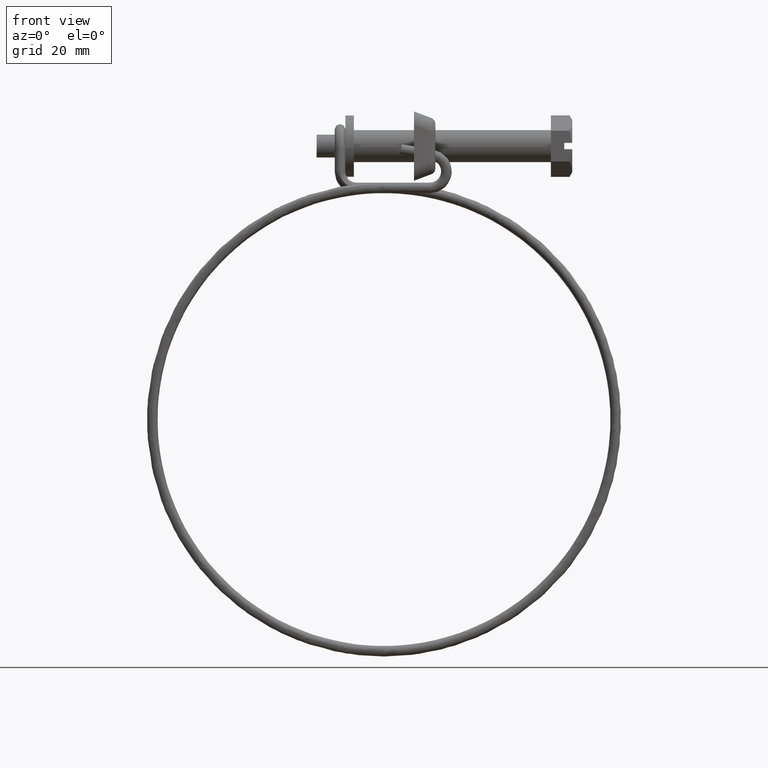
[diagram: clean part render]
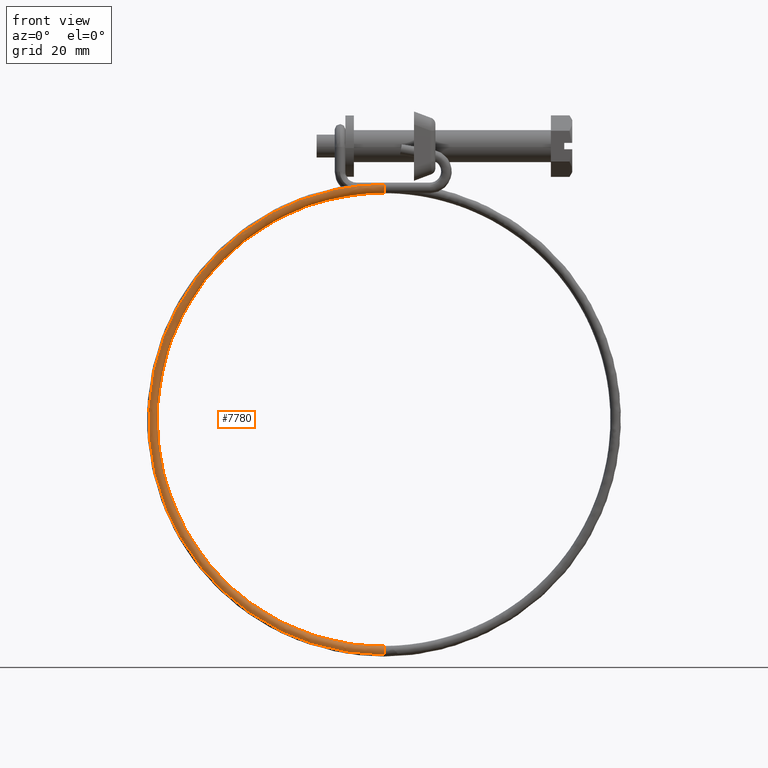
[diagram: same view with one face highlighted and labeled with its STEP entity id]
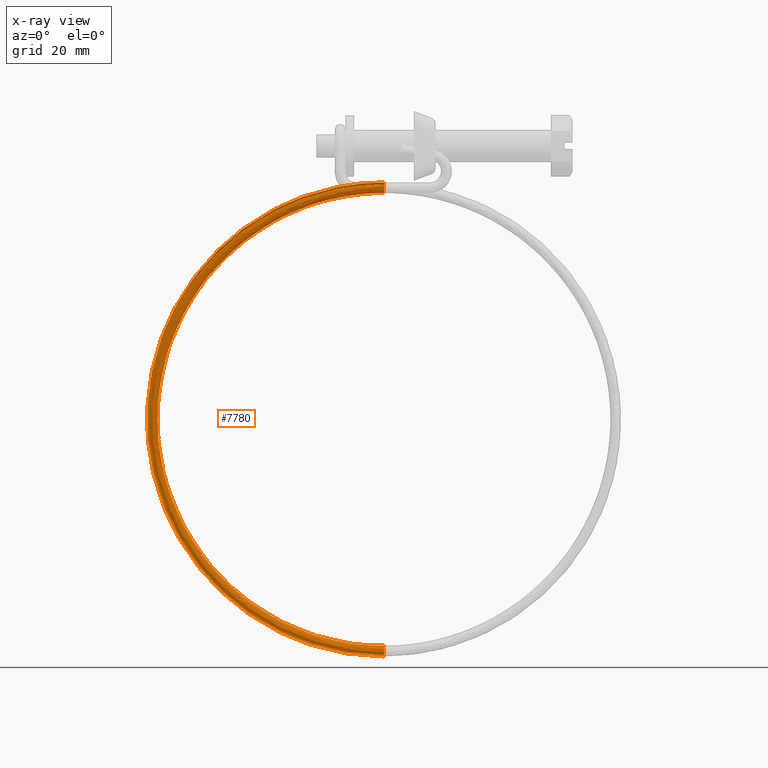
[diagram: x-ray of the same camera — body ghosted, the highlighted face saturated]
A machine part, front view. The second image highlights one B-rep face of the part: STEP entity #7780.
The next image is the same camera in x-ray: the body ghosted, the highlighted face saturated — about 0% of this face is hidden behind the body in this view.
In plain terms, the highlighted face is a freeform B-spline surface patch.
Its self-contained STEP definition (entity closure, byte-faithful):
#5897=CARTESIAN_POINT('',(-31.350000000000001,-6.002141588385088,-6.899077270550611));
#5898=VERTEX_POINT('',#5897);
#5904=CARTESIAN_POINT('',(-31.350000000000001,-6.356184222253045,-6.851067969104711));
#5905=VERTEX_POINT('',#5904);
#5906=CARTESIAN_POINT('',(-31.350000000000001,-6.002141588385088,-6.899077270550611));
#5907=CARTESIAN_POINT('',(-31.350000000000001,-6.116085887673006,-6.862246773684229));
#5908=CARTESIAN_POINT('',(-31.350000000000001,-6.236488194950073,-6.845384976278661));
#5909=CARTESIAN_POINT('',(-31.350000000000001,-6.356184222253045,-6.851067969104711));
#5910=B_SPLINE_CURVE_WITH_KNOTS('',3,(#5906,#5907,#5908,#5909),.UNSPECIFIED.,.F.,.U.,(4,4),(0.942811831421915,1.0),.UNSPECIFIED.);
#5911=EDGE_CURVE('',#5898,#5905,#5910,.T.);
#5913=CARTESIAN_POINT('',(-31.350000000000001,-7.069786413929966,-7.199859997275185));
#5914=VERTEX_POINT('',#5913);
#5924=CARTESIAN_POINT('',(-31.350000000000001,-6.263819731542295,-8.848934030895574));
#5925=VERTEX_POINT('',#5924);
#5926=CARTESIAN_POINT('',(-31.350000000000001,-7.069786413929966,-7.199859997275185));
#5927=CARTESIAN_POINT('',(-31.350000000000001,-7.232862689559377,-7.390962694234685));
#5928=CARTESIAN_POINT('',(-31.350000000000001,-7.320541853620466,-7.645124389463059));
#5929=CARTESIAN_POINT('',(-31.350000000000001,-7.296844524231879,-8.157703301296280));
#5930=CARTESIAN_POINT('',(-31.350000000000001,-7.177170386019830,-8.412635756900700));
#5931=CARTESIAN_POINT('',(-31.350000000000001,-6.790226650247880,-8.765382441016770));
#5932=CARTESIAN_POINT('',(-31.350000000000001,-6.525339787483070,-8.861024514456808));
#5933=CARTESIAN_POINT('',(-31.350000000000001,-6.263819731542295,-8.848934030895574));
#5934=B_SPLINE_CURVE_WITH_KNOTS('',3,(#5926,#5927,#5928,#5929,#5930,#5931,#5932,#5933),.UNSPECIFIED.,.F.,.U.,(4,2,2,4),(0.130000190143494,0.250000000000000,0.375000000000000,0.500000000000000),.UNSPECIFIED.);
#5935=EDGE_CURVE('',#5914,#5925,#5934,.T.);
#5937=CARTESIAN_POINT('',(-31.350000000000001,-5.310151727420603,-7.864888204606469));
#5938=VERTEX_POINT('',#5937);
#5939=CARTESIAN_POINT('',(-31.350000000000001,-6.263819731542295,-8.848934030895574));
#5940=CARTESIAN_POINT('',(-31.350000000000001,-6.002294260058105,-8.836843640709322));
#5941=CARTESIAN_POINT('',(-31.350000000000001,-5.747354324895505,-8.717169631460079));
#5942=CARTESIAN_POINT('',(-31.350000000000001,-5.408316117418934,-8.345279258486906));
#5943=CARTESIAN_POINT('',(-31.350000000000001,-5.314316165359879,-8.106126222328308));
#5944=CARTESIAN_POINT('',(-31.350000000000001,-5.310151727420603,-7.864888204606469));
#5945=B_SPLINE_CURVE_WITH_KNOTS('',3,(#5939,#5940,#5941,#5942,#5943,#5944),.UNSPECIFIED.,.F.,.U.,(4,2,4),(0.500000000000000,0.625000000000000,0.740274350575671),.UNSPECIFIED.);
#5946=EDGE_CURVE('',#5925,#5938,#5945,.T.);
#6017=CARTESIAN_POINT('',(-31.350000000000001,-5.310151727420603,-7.864888204606469));
#6018=CARTESIAN_POINT('',(-31.350000000000001,-5.309799280678833,-7.844528715944496));
#6019=CARTESIAN_POINT('',(-31.350000000000001,-5.310086255496589,-7.824154237097939));
#6020=CARTESIAN_POINT('',(-31.350000000000001,-5.323095466557249,-7.542194869799532));
#6021=CARTESIAN_POINT('',(-31.350000000000001,-5.442743892900785,-7.287155129220346));
#6022=CARTESIAN_POINT('',(-31.350000000000001,-5.741136539541346,-7.014947163850199));
#6023=CARTESIAN_POINT('',(-31.350000000000001,-5.867099215287734,-6.942973733961765));
#6024=CARTESIAN_POINT('',(-31.350000000000001,-6.002141588385088,-6.899077270550611));
#6025=B_SPLINE_CURVE_WITH_KNOTS('',3,(#6017,#6018,#6019,#6020,#6021,#6022,#6023,#6024),.UNSPECIFIED.,.F.,.U.,(4,2,2,4),(0.740274350575671,0.750000000000000,0.875000000000000,0.942811831421915),.UNSPECIFIED.);
#6026=EDGE_CURVE('',#5938,#5898,#6025,.T.);
#6618=CARTESIAN_POINT('',(-31.349999992753141,-3.300324995550327,-94.875130613753925));
#6619=VERTEX_POINT('',#6618);
#6635=CARTESIAN_POINT('',(-31.349999999999859,-4.300002000000002,-93.850001000000105));
#6636=VERTEX_POINT('',#6635);
#6637=CARTESIAN_POINT('',(-31.349999999999859,-4.300002000000002,-93.850001000000105));
#6638=CARTESIAN_POINT('',(-31.349999999074811,-4.038201694071662,-93.850001024100251));
#6639=CARTESIAN_POINT('',(-31.349999997764961,-3.778013123046412,-93.957774154616004));
#6640=CARTESIAN_POINT('',(-31.349999995115208,-3.407770248269916,-94.328014468496121));
#6641=CARTESIAN_POINT('',(-31.349999993791641,-3.299995838205550,-94.588201773943169));
#6642=CARTESIAN_POINT('',(-31.349999992812670,-3.299994866560188,-94.858380116284053));
#6643=CARTESIAN_POINT('',(-31.349999992782699,-3.300105232005116,-94.866757394762359));
#6644=CARTESIAN_POINT('',(-31.349999992753141,-3.300324995550327,-94.875130613753925));
#6645=B_SPLINE_CURVE_WITH_KNOTS('',3,(#6637,#6638,#6639,#6640,#6641,#6642,#6643,#6644),.UNSPECIFIED.,.F.,.U.,(4,2,2,4),(0.500000000000000,0.625000000000000,0.750000000000000,0.754000643922078),.UNSPECIFIED.);
#6646=EDGE_CURVE('',#6636,#6619,#6645,.T.);
#6648=CARTESIAN_POINT('',(-31.349999999999930,-5.028950799208166,-95.534536873649984));
#6649=VERTEX_POINT('',#6648);
#6650=CARTESIAN_POINT('',(-31.349999999999930,-5.028950799208166,-95.534536873649984));
#6651=CARTESIAN_POINT('',(-31.349999999999859,-5.200678629129007,-95.351169305936708));
#6652=CARTESIAN_POINT('',(-31.349999999999870,-5.300001999999999,-95.101328014051802));
#6653=CARTESIAN_POINT('',(-31.349999999999859,-5.300002000000001,-94.588201612200947));
#6654=CARTESIAN_POINT('',(-31.349999999999870,-5.192228903609815,-94.328014341236823));
#6655=CARTESIAN_POINT('',(-31.349999999999859,-4.821988658763284,-93.957774096390295));
#6656=CARTESIAN_POINT('',(-31.349999999999870,-4.561801387799152,-93.850001000000120));
#6657=CARTESIAN_POINT('',(-31.349999999999859,-4.300002000000002,-93.850001000000105));
#6658=B_SPLINE_CURVE_WITH_KNOTS('',3,(#6650,#6651,#6652,#6653,#6654,#6655,#6656,#6657),.UNSPECIFIED.,.F.,.U.,(4,2,2,4),(0.130000190143440,0.250000000000000,0.375000000000000,0.500000000000000),.UNSPECIFIED.);
#6659=EDGE_CURVE('',#6649,#6636,#6658,.T.);
#6661=CARTESIAN_POINT('',(-31.350001623168520,-4.312567047721672,-95.849843094641670));
#6662=VERTEX_POINT('',#6661);
#6727=CARTESIAN_POINT('',(-31.349999992753141,-3.300324995550327,-94.875130613753925));
#6728=CARTESIAN_POINT('',(-31.350000204762821,-3.308607445494275,-95.128357791433388));
#6729=CARTESIAN_POINT('',(-31.350000497401560,-3.417584078672411,-95.377863711579479));
#6730=CARTESIAN_POINT('',(-31.350001098951001,-3.786538113243200,-95.742120829301214));
#6731=CARTESIAN_POINT('',(-31.350001404315311,-4.049080068426769,-95.849864315867862));
#6732=CARTESIAN_POINT('',(-31.350001623168520,-4.312567047721672,-95.849843094641670));
#6733=B_SPLINE_CURVE_WITH_KNOTS('',3,(#6727,#6728,#6729,#6730,#6731,#6732),.UNSPECIFIED.,.F.,.U.,(4,2,4),(0.754000643922080,0.875000000000000,1.0),.UNSPECIFIED.);
#6734=EDGE_CURVE('',#6619,#6662,#6733,.T.);
#7521=CARTESIAN_POINT('',(-30.655752328614440,-5.010231871613422,-95.554524422969536));
#7522=CARTESIAN_POINT('',(-30.658724441951520,-5.193250541143429,-95.369581480504877));
#7523=CARTESIAN_POINT('',(-30.666982278907120,-5.407578728954728,-94.848932184648177));
#7524=CARTESIAN_POINT('',(-30.679162848519059,-5.083829654859460,-94.066174412468882));
#7525=CARTESIAN_POINT('',(-30.683971766650110,-4.300038217611426,-93.741984492660421));
#7526=CARTESIAN_POINT('',(-30.678595252776550,-3.516059698399412,-94.066080284464832));
#7527=CARTESIAN_POINT('',(-30.666161095195900,-3.191958321162210,-94.850011037229095));
#7528=CARTESIAN_POINT('',(-30.653757512499720,-3.521918307917675,-95.647106807034362));
#7529=CARTESIAN_POINT('',(-30.650596186263900,-4.065177320805353,-95.860872431738500));
#7530=CARTESIAN_POINT('',(-30.650866731965220,-4.339961632578056,-95.850000999914073));
#7531=CARTESIAN_POINT('',(-30.887168219076290,-5.010231902460892,-95.554524423464017));
#7532=CARTESIAN_POINT('',(-30.889149627967679,-5.193250571857865,-95.369581481126616));
#7533=CARTESIAN_POINT('',(-30.894654852604749,-5.407578759301813,-94.848932185417823));
#7534=CARTESIAN_POINT('',(-30.902775232346048,-5.083829684670192,-94.066174413014906));
#7535=CARTESIAN_POINT('',(-30.905981177766730,-4.300038247215538,-93.741984492661274));
#7536=CARTESIAN_POINT('',(-30.902396835184380,-3.516059728247863,-94.066080283920044));
#7537=CARTESIAN_POINT('',(-30.894107396797260,-3.191958351563559,-94.850011036460302));
#7538=CARTESIAN_POINT('',(-30.885838341666489,-3.521918338865315,-95.647106806493923));
#7539=CARTESIAN_POINT('',(-30.883730790842598,-4.065177351888652,-95.860872431575601));
#7540=CARTESIAN_POINT('',(-30.883911154643481,-4.339961663647114,-95.850000999942722));
#7541=CARTESIAN_POINT('',(-31.118584109538151,-5.010231933308363,-95.554524423958512));
#7542=CARTESIAN_POINT('',(-31.119574813983849,-5.193250602572298,-95.369581481748384));
#7543=CARTESIAN_POINT('',(-31.122327426302370,-5.407578789648902,-94.848932186187497));
#7544=CARTESIAN_POINT('',(-31.126387616173030,-5.083829714480923,-94.066174413560987));
#7545=CARTESIAN_POINT('',(-31.127990588883371,-4.300038276819652,-93.741984492662169));
#7546=CARTESIAN_POINT('',(-31.126198417592182,-3.516059758096313,-94.066080283375229));
#7547=CARTESIAN_POINT('',(-31.122053698398641,-3.191958381964906,-94.850011035691438));
#7548=CARTESIAN_POINT('',(-31.117919170833261,-3.521918369812958,-95.647106805953470));
#7549=CARTESIAN_POINT('',(-31.116865395421300,-4.065177382971950,-95.860872431412702));
#7550=CARTESIAN_POINT('',(-31.116955577321740,-4.339961694716172,-95.850000999971357));
#7551=CARTESIAN_POINT('',(-37.135397329267541,-5.010232735342612,-95.554524436815171));
#7552=CARTESIAN_POINT('',(-37.110629717835337,-5.193251401147635,-95.369581497914126));
#7553=CARTESIAN_POINT('',(-37.041814409066284,-5.407579578673174,-94.848932206198981));
#7554=CARTESIAN_POINT('',(-36.940309661112067,-5.083830489559951,-94.066174427758227));
#7555=CARTESIAN_POINT('',(-36.900235342884272,-4.300039046526604,-93.741984492684651));
#7556=CARTESIAN_POINT('',(-36.945039625688217,-3.516060534156039,-94.066080269210204));
#7557=CARTESIAN_POINT('',(-37.048657606740043,-3.191959172399967,-94.850011015701497));
#7558=CARTESIAN_POINT('',(-37.152020797084766,-3.521919174451662,-95.647106791901649));
#7559=CARTESIAN_POINT('',(-37.178365182691607,-4.065178191137714,-95.860872427177313));
#7560=CARTESIAN_POINT('',(-37.176110635154259,-4.339962502511699,-95.850001000716134));
#7561=CARTESIAN_POINT('',(-42.916529355025339,-5.036805353614049,-94.404332927301141));
#7562=CARTESIAN_POINT('',(-42.867012667957070,-5.219710255054273,-94.224314258448061));
#7563=CARTESIAN_POINT('',(-42.729433551013592,-5.433722345122944,-93.717346757940646));
#7564=CARTESIAN_POINT('',(-42.526500020173771,-5.109507016920393,-92.954770063781581));
#7565=CARTESIAN_POINT('',(-42.446381374980909,-4.325531501440456,-92.638547680544178));
#7566=CARTESIAN_POINT('',(-42.535956409360082,-3.541758787220010,-92.953735525380011));
#7567=CARTESIAN_POINT('',(-42.743114825191853,-3.218133371082244,-93.717065047810195));
#7568=CARTESIAN_POINT('',(-42.949763849834007,-3.548568148551993,-94.493610246016075));
#7569=CARTESIAN_POINT('',(-43.002432905327993,-4.091948172298284,-94.702138105854019));
#7570=CARTESIAN_POINT('',(-42.997925497496610,-4.366722127977751,-94.691714921618953));
#7571=CARTESIAN_POINT('',(-53.604121068499097,-5.139081793309522,-89.977442202969314));
#7572=CARTESIAN_POINT('',(-53.508855581237093,-5.321548895716088,-89.816373044740303));
#7573=CARTESIAN_POINT('',(-53.244166192900842,-5.534344587678921,-89.362055612355306));
#7574=CARTESIAN_POINT('',(-52.853741008147772,-5.208335033953167,-88.677139426541984));
#7575=CARTESIAN_POINT('',(-52.699600207744382,-4.423651153938940,-88.391577598658756));
#7576=CARTESIAN_POINT('',(-52.871934219067263,-3.640670412392919,-88.672486028373143));
#7577=CARTESIAN_POINT('',(-53.270487688168807,-3.318876575853823,-89.356538223701619));
#7578=CARTESIAN_POINT('',(-53.668061136629923,-3.651138429184916,-90.054001033226129));
#7579=CARTESIAN_POINT('',(-53.769391486519737,-4.194984123460162,-90.242373004511748));
#7580=CARTESIAN_POINT('',(-53.760719654311004,-4.469718227140759,-90.233674757434883));
#7581=CARTESIAN_POINT('',(-63.409314473870538,-5.290466777616795,-83.424957732288874));
#7582=CARTESIAN_POINT('',(-63.272083128729250,-5.472285916382112,-83.291934761904301));
#7583=CARTESIAN_POINT('',(-62.890794145183079,-5.683281280596242,-82.915541964180221));
#7584=CARTESIAN_POINT('',(-62.328380884896639,-5.354616186733251,-82.345567069249540));
#7585=CARTESIAN_POINT('',(-62.106338779416113,-4.568883893093669,-82.105384338832906));
#7586=CARTESIAN_POINT('',(-62.354588474541004,-3.787075309243397,-82.335557584357417));
#7587=CARTESIAN_POINT('',(-62.928710648994397,-3.467992298689765,-82.902275519568590));
#7588=CARTESIAN_POINT('',(-63.501421088830320,-3.802958312222250,-83.482692587474972));
#7589=CARTESIAN_POINT('',(-63.647388958564846,-4.347493221281354,-83.641232873507477));
#7590=CARTESIAN_POINT('',(-63.634897055835182,-4.622168342093421,-83.635087616420734));
#7591=CARTESIAN_POINT('',(-69.961380782826112,-5.517000060777050,-73.619785661943340));
#7592=CARTESIAN_POINT('',(-69.796116556414432,-5.697849919275313,-73.528716613897757));
#7593=CARTESIAN_POINT('',(-69.336939909524858,-5.906152196958943,-73.268890249406368));
#7594=CARTESIAN_POINT('',(-68.659639892490134,-5.573514715649990,-72.870854514799120));
#7595=CARTESIAN_POINT('',(-68.392240219616667,-4.786214113903646,-72.698553777796022));
#7596=CARTESIAN_POINT('',(-68.691201027712552,-4.006158945281676,-72.852832930443498));
#7597=CARTESIAN_POINT('',(-69.382601792726021,-3.691131023538754,-73.244032094022899));
#7598=CARTESIAN_POINT('',(-70.072302441864323,-4.030142154656016,-73.649361980997256));
#7599=CARTESIAN_POINT('',(-70.248087843047529,-4.575708051026131,-73.763277442815934));
#7600=CARTESIAN_POINT('',(-70.233044161585681,-4.850294940138388,-73.760951169724663));
#7601=CARTESIAN_POINT('',(-74.387899011259989,-5.763912282140269,-62.932540136736151));
#7602=CARTESIAN_POINT('',(-74.203697383130603,-5.943705809550313,-62.887192882795979));
#7603=CARTESIAN_POINT('',(-73.691904312214263,-6.149073135256331,-62.754401754756742));
#7604=CARTESIAN_POINT('',(-72.936993412523293,-5.812106507319622,-62.543746995275932));
#7605=CARTESIAN_POINT('',(-72.638952776822322,-5.023096748102888,-62.445424717106022));
#7606=CARTESIAN_POINT('',(-72.972171095014289,-4.244952468502059,-62.516993746802747));
#7607=CARTESIAN_POINT('',(-73.742798528291758,-3.934343822134394,-62.716910839923962));
#7608=CARTESIAN_POINT('',(-74.511531031488502,-4.277763361864058,-62.931429008565530));
#7609=CARTESIAN_POINT('',(-74.707459441495743,-4.824452838266030,-62.996711901084559));
#7610=CARTESIAN_POINT('',(-74.690691925172132,-5.098943571611292,-62.998547594147773));
#7611=CARTESIAN_POINT('',(-75.537931089602807,-5.897490524303376,-57.150795260224108));
#7612=CARTESIAN_POINT('',(-75.348810251928796,-6.076712644351237,-57.130180563908311));
#7613=CARTESIAN_POINT('',(-74.823349455111838,-6.280492349300279,-57.066107349752812));
#7614=CARTESIAN_POINT('',(-74.048278229221680,-5.941183930761143,-56.956813677782229));
#7615=CARTESIAN_POINT('',(-73.742278248317675,-5.151249626977427,-56.898509000242690));
#7616=CARTESIAN_POINT('',(-74.084395351803792,-4.374139015768519,-56.925337159064718));
#7617=CARTESIAN_POINT('',(-74.875602830211918,-4.065920913887214,-57.021782922399218));
#7618=CARTESIAN_POINT('',(-75.664864773464771,-4.411725119884829,-57.133084191493218));
#7619=CARTESIAN_POINT('',(-75.866025563365866,-4.959022381016355,-57.172059983861139));
#7620=CARTESIAN_POINT('',(-75.848810260943068,-5.233461100257324,-57.176147033562927));
#7621=CARTESIAN_POINT('',(-75.537931089681848,-6.164752061124866,-45.582758458966843));
#7622=CARTESIAN_POINT('',(-75.348810252007851,-6.342830923745283,-45.611628039959768));
#7623=CARTESIAN_POINT('',(-74.823349455190922,-6.543434157156435,-45.685043894307967));
#7624=CARTESIAN_POINT('',(-74.048278229300720,-6.199440343028692,-45.778550928670697));
#7625=CARTESIAN_POINT('',(-73.742278248396758,-5.407656233831397,-45.800312457089163));
#7626=CARTESIAN_POINT('',(-74.084395351882762,-4.632613760240314,-45.737624210168292));
#7627=CARTESIAN_POINT('',(-74.875602830291001,-4.329178599453854,-45.627047147479502));
#7628=CARTESIAN_POINT('',(-75.664864773543755,-4.679753985576072,-45.531834648087496));
#7629=CARTESIAN_POINT('',(-75.866025563444978,-5.228267287031827,-45.518175858081392));
#7630=CARTESIAN_POINT('',(-75.848810261022180,-5.502601937774448,-45.526767365402478));
#7631=CARTESIAN_POINT('',(-74.387899011339329,-6.298330303284316,-39.801013582514727));
#7632=CARTESIAN_POINT('',(-74.203697383196371,-6.475837758546970,-39.854615721156073));
#7633=CARTESIAN_POINT('',(-73.691904312279647,-6.674853371206589,-39.996749489359573));
#7634=CARTESIAN_POINT('',(-72.936993412556177,-6.328517766468029,-40.191617611209288));
#7635=CARTESIAN_POINT('',(-72.638952776863746,-5.535809112703275,-40.253396740297390));
#7636=CARTESIAN_POINT('',(-72.972171095057291,-4.761800307503293,-40.145967622474132));
#7637=CARTESIAN_POINT('',(-73.742798528348544,-4.460755691206106,-39.931919230037863));
#7638=CARTESIAN_POINT('',(-74.511531031577405,-4.813715743597371,-39.733489831106738));
#7639=CARTESIAN_POINT('',(-74.707459441537864,-5.362836829780640,-39.693523940899503));
#7640=CARTESIAN_POINT('',(-74.690691925189071,-5.637119466417993,-39.704366804880102));
#7641=CARTESIAN_POINT('',(-69.961380782754929,-6.545242524652752,-29.113768057150700));
#7642=CARTESIAN_POINT('',(-69.796116556354747,-6.721693648819478,-29.213091989845740));
#7643=CARTESIAN_POINT('',(-69.336939909454287,-6.917774309490803,-29.482260994591801));
#7644=CARTESIAN_POINT('',(-68.659639892469286,-6.567109558138919,-29.864510091596159));
#7645=CARTESIAN_POINT('',(-68.392240219553685,-5.772691746908539,-30.000267679448118));
#7646=CARTESIAN_POINT('',(-68.691201027672037,-5.000593830727825,-29.810128438716760));
#7647=CARTESIAN_POINT('',(-69.382601792674549,-4.703968489802996,-29.404797975769391));
#7648=CARTESIAN_POINT('',(-70.072302441778689,-5.061336950801575,-29.015556858440341));
#7649=CARTESIAN_POINT('',(-70.248087842998160,-5.611581617023843,-28.926958399070301));
#7650=CARTESIAN_POINT('',(-70.233044161561281,-5.885768097896193,-28.941963229159519));
#7651=CARTESIAN_POINT('',(-63.409314473891172,-6.771775807810846,-19.308595986912731));
#7652=CARTESIAN_POINT('',(-63.272083128732604,-6.947257651715723,-19.449873841992989));
#7653=CARTESIAN_POINT('',(-62.890794145208602,-7.140645225861122,-19.835609279856019));
#7654=CARTESIAN_POINT('',(-62.328380884881952,-6.786008087057910,-20.389797537214140));
#7655=CARTESIAN_POINT('',(-62.106338779383478,-5.990021967708315,-20.593437118494300));
#7656=CARTESIAN_POINT('',(-62.354588474572921,-5.219677466764016,-20.327403784875351));
#7657=CARTESIAN_POINT('',(-62.928710648983127,-4.927107214647718,-19.746554550321228));
#7658=CARTESIAN_POINT('',(-63.501421088853107,-5.288520793242004,-19.182226252124380));
#7659=CARTESIAN_POINT('',(-63.647388958560960,-5.839796446762927,-19.049002968431729));
#7660=CARTESIAN_POINT('',(-63.634897055813120,-6.113894695934096,-19.067826782545222));
#7661=CARTESIAN_POINT('',(-53.604121068531050,-6.923160792118313,-12.756111516298830));
#7662=CARTESIAN_POINT('',(-53.508855581292082,-7.097994672379422,-12.925435559195520));
#7663=CARTESIAN_POINT('',(-53.244166192922293,-7.289581918783443,-13.389095631818410));
#7664=CARTESIAN_POINT('',(-52.853741008199982,-6.932289239834915,-14.058225179948870));
#7665=CARTESIAN_POINT('',(-52.699600207874660,-6.135254706880128,-14.307243858771219));
#7666=CARTESIAN_POINT('',(-52.871934219045990,-5.366082363618079,-13.990475340934680));
#7667=CARTESIAN_POINT('',(-53.270487688244842,-5.076222937493731,-13.292291846242589));
#7668=CARTESIAN_POINT('',(-53.668061136671817,-5.440340676272534,-12.610917806461741));
#7669=CARTESIAN_POINT('',(-53.769391486579032,-5.992305544593982,-12.447862837495119));
#7670=CARTESIAN_POINT('',(-53.760719654381617,-6.266344810896636,-12.469239641612010));
#7671=CARTESIAN_POINT('',(-42.916529354986423,-7.025437231816677,-8.329220791850482));
#7672=CARTESIAN_POINT('',(-42.867012667897150,-7.199833313044157,-8.517494345393729));
#7673=CARTESIAN_POINT('',(-42.729433550998493,-7.390204161328877,-9.033804486014887));
#7674=CARTESIAN_POINT('',(-42.526500020110582,-7.031117256874291,-9.780594542659838));
#7675=CARTESIAN_POINT('',(-42.446381374873589,-6.233374359357391,-10.060273776706230));
#7676=CARTESIAN_POINT('',(-42.535956409380169,-5.464993988789450,-9.709225843807799));
#7677=CARTESIAN_POINT('',(-42.743114825111782,-5.176966142252248,-8.931765022007014));
#7678=CARTESIAN_POINT('',(-42.949763849789889,-5.542910956915105,-8.171308593509444));
#7679=CARTESIAN_POINT('',(-43.002432905277267,-6.095341495743625,-7.988097736039657));
#7680=CARTESIAN_POINT('',(-42.997925497434792,-6.369340910048025,-8.011199477284265));
#7681=CARTESIAN_POINT('',(-37.135397295382617,-7.052214890219972,-7.179062805148662));
#7682=CARTESIAN_POINT('',(-37.110629684153743,-7.226496773006367,-7.372260417336777));
#7683=CARTESIAN_POINT('',(-37.041814375876022,-7.416550320900358,-7.902251757904546));
#7684=CARTESIAN_POINT('',(-36.940309628737317,-7.056995350604807,-8.669222021325201));
#7685=CARTESIAN_POINT('',(-36.900235310859692,-6.259067650118737,-8.956868451000876));
#7686=CARTESIAN_POINT('',(-36.945039593240303,-5.490893894982788,-8.596912955804111));
#7687=CARTESIAN_POINT('',(-37.048657573581821,-5.203343855690317,-7.798851794793129));
#7688=CARTESIAN_POINT('',(-37.152020763100353,-5.569765265644509,-7.017845688133045));
#7689=CARTESIAN_POINT('',(-37.178365148499843,-6.122317267534442,-6.829397293804844));
#7690=CARTESIAN_POINT('',(-37.176110600983861,-6.396306287242039,-6.852947262425684));
#7691=CARTESIAN_POINT('',(-31.118584113344589,-7.052002450513539,-7.179027954321494));
#7692=CARTESIAN_POINT('',(-31.119574817771660,-7.226284781280942,-7.372225789664317));
#7693=CARTESIAN_POINT('',(-31.122327430041391,-7.416339581082159,-7.902217749071488));
#7694=CARTESIAN_POINT('',(-31.126387619836400,-7.056786496652949,-8.669188919186697));
#7695=CARTESIAN_POINT('',(-31.127990592515768,-6.258859550554735,-8.956835705215385));
#7696=CARTESIAN_POINT('',(-31.126198421260490,-5.490684951786352,-8.596879811626396));
#7697=CARTESIAN_POINT('',(-31.122053702139262,-5.203132990785216,-7.798817724562613));
#7698=CARTESIAN_POINT('',(-31.117919174650719,-5.569552522261563,-7.017810688008932));
#7699=CARTESIAN_POINT('',(-31.116865399258231,-6.122104053450301,-6.829362055368138));
#7700=CARTESIAN_POINT('',(-31.116955581156851,-6.396093113245746,-6.852912044426871));
#7701=CARTESIAN_POINT('',(-30.887168226689170,-7.051994279755775,-7.179026613905094));
#7702=CARTESIAN_POINT('',(-30.889149635543308,-7.226276627753217,-7.372224457830790));
#7703=CARTESIAN_POINT('',(-30.894654860082760,-7.416331475704710,-7.902216441039476));
#7704=CARTESIAN_POINT('',(-30.902775239672810,-7.056778463808818,-8.669187646027549));
#7705=CARTESIAN_POINT('',(-30.905981185031528,-6.258851546725524,-8.956834445762121));
#7706=CARTESIAN_POINT('',(-30.902396842521000,-5.490676915509740,-8.596878536850360));
#7707=CARTESIAN_POINT('',(-30.894107404278511,-5.203124880596733,-7.798816414169157));
#7708=CARTESIAN_POINT('',(-30.885838349301419,-5.569544339823935,-7.017809341850342));
#7709=CARTESIAN_POINT('',(-30.883730798516439,-6.122095852908776,-6.829360700043679));
#7710=CARTESIAN_POINT('',(-30.883911162313701,-6.396084914246064,-6.852910689888485));
#7711=CARTESIAN_POINT('',(-30.655752340033761,-7.051986108998010,-7.179025273488693));
#7712=CARTESIAN_POINT('',(-30.658724453314960,-7.226268474225491,-7.372223125997262));
#7713=CARTESIAN_POINT('',(-30.666982290124150,-7.416323370327259,-7.902215133007464));
#7714=CARTESIAN_POINT('',(-30.679162859509209,-7.056770430964690,-8.669186372868403));
#7715=CARTESIAN_POINT('',(-30.683971777547299,-6.258843542896308,-8.956833186308861));
#7716=CARTESIAN_POINT('',(-30.678595263781510,-5.490668879233124,-8.596877262074319));
#7717=CARTESIAN_POINT('',(-30.666161106417778,-5.203116770408248,-7.798815103775706));
#7718=CARTESIAN_POINT('',(-30.653757523952120,-5.569536157386304,-7.017807995691750));
#7719=CARTESIAN_POINT('',(-30.650596197774661,-6.122087652367256,-6.829359344719218));
#7720=CARTESIAN_POINT('',(-30.650866743470541,-6.396076715246383,-6.852909335350097));
#7721=B_SPLINE_SURFACE_WITH_KNOTS('',3,3,((#7521,#7531,#7541,#7551,#7561,#7571,#7581,#7591,#7601,#7611,#7621,#7631,#7641,#7651,#7661,#7671,#7681,#7691,#7701,#7711),(#7522,#7532,#7542,#7552,#7562,#7572,#7582,#7592,#7602,#7612,#7622,#7632,#7642,#7652,#7662,#7672,#7682,#7692,#7702,#7712),(#7523,#7533,#7543,#7553,#7563,#7573,#7583,#7593,#7603,#7613,#7623,#7633,#7643,#7653,#7663,#7673,#7683,#7693,#7703,#7713),(#7524,#7534,#7544,#7554,#7564,#7574,#7584,#7594,#7604,#7614,#7624,#7634,#7644,#7654,#7664,#7674,#7684,#7694,#7704,#7714),(#7525,#7535,#7545,#7555,#7565,#7575,#7585,#7595,#7605,#7615,#7625,#7635,#7645,#7655,#7665,#7675,#7685,#7695,#7705,#7715),(#7526,#7536,#7546,#7556,#7566,#7576,#7586,#7596,#7606,#7616,#7626,#7636,#7646,#7656,#7666,#7676,#7686,#7696,#7706,#7716),(#7527,#7537,#7547,#7557,#7567,#7577,#7587,#7597,#7607,#7617,#7627,#7637,#7647,#7657,#7667,#7677,#7687,#7697,#7707,#7717),(#7528,#7538,#7548,#7558,#7568,#7578,#7588,#7598,#7608,#7618,#7628,#7638,#7648,#7658,#7668,#7678,#7688,#7698,#7708,#7718),(#7529,#7539,#7549,#7559,#7569,#7579,#7589,#7599,#7609,#7619,#7629,#7639,#7649,#7659,#7669,#7679,#7689,#7699,#7709,#7719),(#7530,#7540,#7550,#7560,#7570,#7580,#7590,#7600,#7610,#7620,#7630,#7640,#7650,#7660,#7670,#7680,#7690,#7700,#7710,#7720)),.UNSPECIFIED.,.F.,.F.,.U.,(4,1,1,1,1,1,1,4),(4,2,2,1,2,2,2,1,2,2,4),(0.0,0.781845877629182,1.567715950987399,2.353586024345617,3.139456097703834,3.925326171062051,4.711196244420269,5.537050053541711),(0.0,0.699137487626812,18.177574882891530,35.656012278156233,53.134449673420583,70.612887068685296,88.091324463949718,105.569761859214400,123.048199254479100,140.526636649743490,141.225774129965400),.UNSPECIFIED.);
#7722=ORIENTED_EDGE('',*,*,#5935,.F.);
#7723=CARTESIAN_POINT('',(-31.349999999999930,-5.028950799208166,-95.534536873649984));
#7724=CARTESIAN_POINT('',(-37.132723915997168,-5.028951570036184,-95.534536886337563));
#7725=CARTESIAN_POINT('',(-42.911184529233928,-5.055511908059022,-94.384876925179213));
#7726=CARTESIAN_POINT('',(-53.594159397062903,-5.157748521686163,-89.959710015765282));
#7727=CARTESIAN_POINT('',(-58.493527380152983,-5.233383745838197,-86.685946544708614));
#7728=CARTESIAN_POINT('',(-66.669664508574158,-5.422285321086834,-78.509609611633593));
#7729=CARTESIAN_POINT('',(-69.943220905444264,-5.535477352467795,-73.610252973174298));
#7730=CARTESIAN_POINT('',(-74.368016307650819,-5.782282980567047,-62.927621186333532));
#7731=CARTESIAN_POINT('',(-75.517517407053845,-5.915799542391381,-57.148546055845472));
#7732=CARTESIAN_POINT('',(-75.517517407132928,-6.182937670747856,-45.585850815079780));
#7733=CARTESIAN_POINT('',(-74.368016307729846,-6.316454232568932,-39.806775684653552));
#7734=CARTESIAN_POINT('',(-69.943220905365592,-6.563259860674688,-29.124143897689681));
#7735=CARTESIAN_POINT('',(-66.669664508563642,-6.676451892048831,-24.224787259173439));
#7736=CARTESIAN_POINT('',(-58.493527380164522,-6.865353467304588,-16.048450326335580));
#7737=CARTESIAN_POINT('',(-53.594159397103077,-6.940988691450623,-12.774686855199640));
#7738=CARTESIAN_POINT('',(-42.911184529194763,-7.043225305082662,-8.349519945706700));
#7739=CARTESIAN_POINT('',(-37.132723882132822,-7.069990636375258,-7.199893484525287));
#7740=CARTESIAN_POINT('',(-31.350000000000001,-7.069786413929966,-7.199859997275185));
#7741=B_SPLINE_CURVE_WITH_KNOTS('',3,(#7723,#7724,#7725,#7726,#7727,#7728,#7729,#7730,#7731,#7732,#7733,#7734,#7735,#7736,#7737,#7738,#7739,#7740),.UNSPECIFIED.,.F.,.U.,(4,2,2,2,2,2,2,2,4),(0.459674014216280,0.517138037525583,0.574602060834886,0.632066084144188,0.689530107453491,0.746994130762793,0.804458154072096,0.861922177381399,0.919386200690701),.UNSPECIFIED.);
#7742=EDGE_CURVE('',#6649,#5914,#7741,.T.);
#7743=ORIENTED_EDGE('',*,*,#7742,.F.);
#7744=ORIENTED_EDGE('',*,*,#6659,.T.);
#7745=ORIENTED_EDGE('',*,*,#6646,.T.);
#7746=ORIENTED_EDGE('',*,*,#6734,.T.);
#7747=CARTESIAN_POINT('',(-31.350001623168520,-4.312567047721672,-95.849843094641670));
#7748=CARTESIAN_POINT('',(-37.175495996935247,-4.312565460007609,-95.849842904880489));
#7749=CARTESIAN_POINT('',(-42.998513374467180,-4.339171547752963,-94.692322649262479));
#7750=CARTESIAN_POINT('',(-48.380182531438173,-4.390363244311645,-92.463139587697100));
#7751=CARTESIAN_POINT('',(-53.762241454942647,-4.441558648420816,-90.233795077902727));
#7752=CARTESIAN_POINT('',(-58.698318491525399,-4.517290294710591,-86.935184329387738));
#7753=CARTESIAN_POINT('',(-62.817056499709203,-4.611870044529205,-82.816308303217596));
#7754=CARTESIAN_POINT('',(-66.936138935904083,-4.706457703545989,-78.697087837494664));
#7755=CARTESIAN_POINT('',(-70.234295535014880,-4.819802233724620,-73.760959340109068));
#7756=CARTESIAN_POINT('',(-72.463228429036832,-4.943370663673575,-68.379509753794125));
#7757=CARTESIAN_POINT('',(-74.692302590671403,-5.066946925270194,-62.997719096405419));
#7758=CARTESIAN_POINT('',(-75.850327318311827,-5.200639332867757,-57.175355094747061));
#7759=CARTESIAN_POINT('',(-75.850319922165866,-5.334391504012743,-51.350455895515658));
#7760=CARTESIAN_POINT('',(-75.850312283544895,-5.472528602027039,-45.334593388615467));
#7761=CARTESIAN_POINT('',(-74.614945348662104,-5.610603646428226,-39.321406780562441));
#7762=CARTESIAN_POINT('',(-72.240503250104155,-5.737539984888906,-33.793532130765037));
#7763=CARTESIAN_POINT('',(-69.828630324215140,-5.866477354315910,-28.178515780755198));
#7764=CARTESIAN_POINT('',(-66.247987503566563,-5.983801963190766,-23.067736577496159));
#7765=CARTESIAN_POINT('',(-61.787892763589660,-6.079792206729904,-18.888471781268979));
#7766=CARTESIAN_POINT('',(-57.746611519499098,-6.166768738271566,-15.101649881793280));
#7767=CARTESIAN_POINT('',(-52.993992467322002,-6.236227792690512,-12.074978144277249));
#7768=CARTESIAN_POINT('',(-47.849382961059632,-6.283388506694107,-10.022052525895610));
#7769=CARTESIAN_POINT('',(-42.616622433545743,-6.331357302457319,-7.933950770317654));
#7770=CARTESIAN_POINT('',(-36.984370203671489,-6.356372113764399,-6.851100268244086));
#7771=CARTESIAN_POINT('',(-31.350000000000001,-6.356184222253045,-6.851067969104711));
#7772=B_SPLINE_CURVE_WITH_KNOTS('',3,(#7747,#7748,#7749,#7750,#7751,#7752,#7753,#7754,#7755,#7756,#7757,#7758,#7759,#7760,#7761,#7762,#7763,#7764,#7765,#7766,#7767,#7768,#7769,#7770,#7771),.UNSPECIFIED.,.F.,.U.,(4,3,3,3,3,3,3,3,4),(0.0,17.476483121300870,34.954231974114599,52.433442397502553,69.913760636353970,87.967153065130361,106.305140100425900,122.921146571288300,139.821862297099100),.UNSPECIFIED.);
#7773=EDGE_CURVE('',#6662,#5905,#7772,.T.);
#7774=ORIENTED_EDGE('',*,*,#7773,.T.);
#7775=ORIENTED_EDGE('',*,*,#5911,.F.);
#7776=ORIENTED_EDGE('',*,*,#6026,.F.);
#7777=ORIENTED_EDGE('',*,*,#5946,.F.);
#7778=EDGE_LOOP('',(#7722,#7743,#7744,#7745,#7746,#7774,#7775,#7776,#7777));
#7779=FACE_OUTER_BOUND('',#7778,.T.);
#7780=ADVANCED_FACE('',(#7779),#7721,.T.);